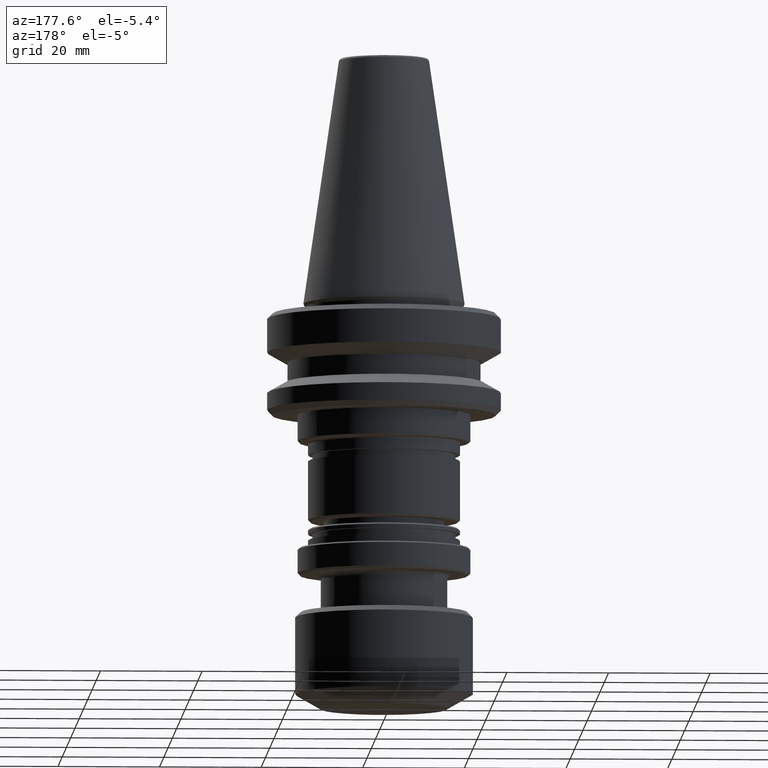
[diagram: clean part render]
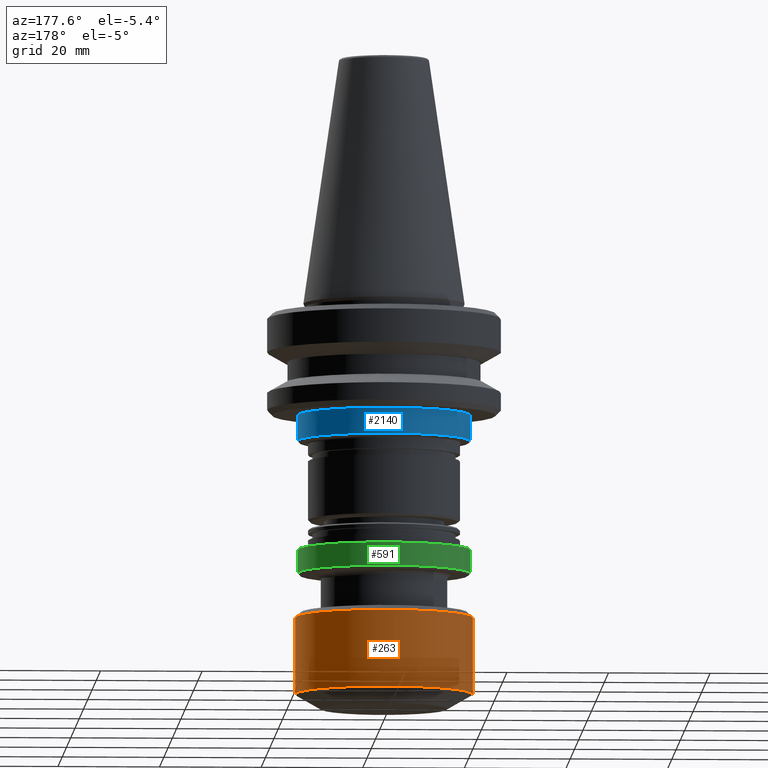
[diagram: same view with three faces highlighted in distinct colors, each labeled with its STEP entity id]
A machine part, auxiliary view with three faces highlighted in distinct colors.
Their STEP definitions:

[orange] entity #263 — the highlighted cylindrical surface (partial cylindrical patch) has radius 17.5 mm, axis along (-0, -0, 1).
#4 = DIRECTION ( 'NONE',  ( -0.0000000000000000000, -0.0000000000000000000, 1.000000000000000000 ) ) ;
#44 = FACE_OUTER_BOUND ( 'NONE', #1490, .T. ) ;
#83 = VECTOR ( 'NONE', #4, 1000.000000000000000 ) ;
#246 = DIRECTION ( 'NONE',  ( -0.0000000000000000000, -0.0000000000000000000, 1.000000000000000000 ) ) ;
#263 = ADVANCED_FACE ( 'NONE', ( #44 ), #843, .T. ) ;
#397 = LINE ( 'NONE', #778, #1742 ) ;
#407 = CIRCLE ( 'NONE', #476, 17.49999999999851500 ) ;
#476 = AXIS2_PLACEMENT_3D ( 'NONE', #1727, #2079, #575 ) ;
#495 = ORIENTED_EDGE ( 'NONE', *, *, #2002, .F. ) ;
#575 = DIRECTION ( 'NONE',  ( 1.000000000000000000, 0.0000000000000000000, 0.0000000000000000000 ) ) ;
#590 = CARTESIAN_POINT ( 'NONE',  ( -17.49999999999851500, 2.143131898507686400E-015, -77.11324865405177300 ) ) ;
#625 = EDGE_CURVE ( 'NONE', #996, #2107, #407, .T. ) ;
#639 = DIRECTION ( 'NONE',  ( 1.000000000000000000, 0.0000000000000000000, 0.0000000000000000000 ) ) ;
#722 = DIRECTION ( 'NONE',  ( -0.0000000000000000000, -0.0000000000000000000, 1.000000000000000000 ) ) ;
#726 = VERTEX_POINT ( 'NONE', #1839 ) ;
#778 = CARTESIAN_POINT ( 'NONE',  ( -17.49999999999851500, 2.143131898507686400E-015, 111.7367721053119400 ) ) ;
#803 = AXIS2_PLACEMENT_3D ( 'NONE', #1309, #246, #1519 ) ;
#843 = CYLINDRICAL_SURFACE ( 'NONE', #1035, 17.49999999999851500 ) ;
#857 = EDGE_CURVE ( 'NONE', #2107, #905, #397, .T. ) ;
#876 = EDGE_CURVE ( 'NONE', #726, #905, #2197, .T. ) ;
#903 = DIRECTION ( 'NONE',  ( -0.0000000000000000000, -0.0000000000000000000, 1.000000000000000000 ) ) ;
#905 = VERTEX_POINT ( 'NONE', #1431 ) ;
#996 = VERTEX_POINT ( 'NONE', #1254 ) ;
#1001 = LINE ( 'NONE', #1471, #83 ) ;
#1035 = AXIS2_PLACEMENT_3D ( 'NONE', #1343, #903, #639 ) ;
#1254 = CARTESIAN_POINT ( 'NONE',  ( 17.49999999999851500, 0.0000000000000000000, -77.11324865405177300 ) ) ;
#1309 = CARTESIAN_POINT ( 'NONE',  ( 0.0000000000000000000, 0.0000000000000000000, -62.00000000000005700 ) ) ;
#1343 = CARTESIAN_POINT ( 'NONE',  ( 0.0000000000000000000, 0.0000000000000000000, 111.7367721053119400 ) ) ;
#1431 = CARTESIAN_POINT ( 'NONE',  ( -17.49999999999851500, 2.143131898507686400E-015, -62.00000000000005700 ) ) ;
#1471 = CARTESIAN_POINT ( 'NONE',  ( 17.49999999999851500, 0.0000000000000000000, 111.7367721053119400 ) ) ;
#1490 = EDGE_LOOP ( 'NONE', ( #1931, #2083, #1542, #495 ) ) ;
#1519 = DIRECTION ( 'NONE',  ( 1.000000000000000000, 0.0000000000000000000, 0.0000000000000000000 ) ) ;
#1542 = ORIENTED_EDGE ( 'NONE', *, *, #876, .F. ) ;
#1727 = CARTESIAN_POINT ( 'NONE',  ( 0.0000000000000000000, 0.0000000000000000000, -77.11324865405177300 ) ) ;
#1742 = VECTOR ( 'NONE', #722, 1000.000000000000000 ) ;
#1839 = CARTESIAN_POINT ( 'NONE',  ( 17.49999999999851500, 0.0000000000000000000, -62.00000000000005700 ) ) ;
#1931 = ORIENTED_EDGE ( 'NONE', *, *, #625, .T. ) ;
#2002 = EDGE_CURVE ( 'NONE', #996, #726, #1001, .T. ) ;
#2079 = DIRECTION ( 'NONE',  ( -0.0000000000000000000, -0.0000000000000000000, 1.000000000000000000 ) ) ;
#2083 = ORIENTED_EDGE ( 'NONE', *, *, #857, .T. ) ;
#2107 = VERTEX_POINT ( 'NONE', #590 ) ;
#2197 = CIRCLE ( 'NONE', #803, 17.49999999999851500 ) ;

[blue] entity #2140 — the highlighted cylindrical surface (partial cylindrical patch) has radius 17 mm, axis along (-0, -0, 1).
#33 = ORIENTED_EDGE ( 'NONE', *, *, #1279, .T. ) ;
#93 = EDGE_CURVE ( 'NONE', #132, #1526, #318, .T. ) ;
#106 = VECTOR ( 'NONE', #1885, 1000.000000000000000 ) ;
#132 = VERTEX_POINT ( 'NONE', #944 ) ;
#222 = CYLINDRICAL_SURFACE ( 'NONE', #1310, 16.99999999999968000 ) ;
#257 = CARTESIAN_POINT ( 'NONE',  ( 0.0000000000000000000, 0.0000000000000000000, -27.09999999999923400 ) ) ;
#313 = DIRECTION ( 'NONE',  ( 1.000000000000000000, 0.0000000000000000000, 0.0000000000000000000 ) ) ;
#318 = CIRCLE ( 'NONE', #1583, 16.99999999999967700 ) ;
#498 = CARTESIAN_POINT ( 'NONE',  ( 16.99999999999968000, 0.0000000000000000000, -22.00000000000046200 ) ) ;
#546 = CARTESIAN_POINT ( 'NONE',  ( -16.99999999999968000, 2.081899558550461600E-015, -22.00000000000046200 ) ) ;
#565 = DIRECTION ( 'NONE',  ( -0.0000000000000000000, -0.0000000000000000000, 1.000000000000000000 ) ) ;
#664 = DIRECTION ( 'NONE',  ( 1.000000000000000000, 0.0000000000000000000, 0.0000000000000000000 ) ) ;
#884 = ORIENTED_EDGE ( 'NONE', *, *, #93, .T. ) ;
#896 = VECTOR ( 'NONE', #1729, 1000.000000000000000 ) ;
#944 = CARTESIAN_POINT ( 'NONE',  ( 16.99999999999967700, 0.0000000000000000000, -27.09999999999923400 ) ) ;
#957 = AXIS2_PLACEMENT_3D ( 'NONE', #1200, #1984, #313 ) ;
#977 = CARTESIAN_POINT ( 'NONE',  ( -16.99999999999968000, 2.081899558550461200E-015, 111.7367721053119400 ) ) ;
#991 = ORIENTED_EDGE ( 'NONE', *, *, #2137, .F. ) ;
#1004 = VERTEX_POINT ( 'NONE', #498 ) ;
#1023 = CARTESIAN_POINT ( 'NONE',  ( 16.99999999999968000, 0.0000000000000000000, 111.7367721053119400 ) ) ;
#1027 = LINE ( 'NONE', #1023, #106 ) ;
#1146 = CIRCLE ( 'NONE', #957, 16.99999999999968000 ) ;
#1200 = CARTESIAN_POINT ( 'NONE',  ( 0.0000000000000000000, 0.0000000000000000000, -22.00000000000046200 ) ) ;
#1279 = EDGE_CURVE ( 'NONE', #1526, #1315, #1491, .T. ) ;
#1310 = AXIS2_PLACEMENT_3D ( 'NONE', #2136, #565, #664 ) ;
#1315 = VERTEX_POINT ( 'NONE', #546 ) ;
#1491 = LINE ( 'NONE', #977, #896 ) ;
#1526 = VERTEX_POINT ( 'NONE', #1562 ) ;
#1562 = CARTESIAN_POINT ( 'NONE',  ( -16.99999999999967700, 2.081899558550460800E-015, -27.09999999999923400 ) ) ;
#1569 = DIRECTION ( 'NONE',  ( -0.0000000000000000000, -0.0000000000000000000, 1.000000000000000000 ) ) ;
#1583 = AXIS2_PLACEMENT_3D ( 'NONE', #257, #1569, #2017 ) ;
#1609 = FACE_OUTER_BOUND ( 'NONE', #1919, .T. ) ;
#1729 = DIRECTION ( 'NONE',  ( -0.0000000000000000000, -0.0000000000000000000, 1.000000000000000000 ) ) ;
#1885 = DIRECTION ( 'NONE',  ( -0.0000000000000000000, -0.0000000000000000000, 1.000000000000000000 ) ) ;
#1919 = EDGE_LOOP ( 'NONE', ( #884, #33, #991, #2163 ) ) ;
#1984 = DIRECTION ( 'NONE',  ( -0.0000000000000000000, -0.0000000000000000000, 1.000000000000000000 ) ) ;
#2017 = DIRECTION ( 'NONE',  ( 1.000000000000000000, 0.0000000000000000000, 0.0000000000000000000 ) ) ;
#2136 = CARTESIAN_POINT ( 'NONE',  ( 0.0000000000000000000, 0.0000000000000000000, 111.7367721053119400 ) ) ;
#2137 = EDGE_CURVE ( 'NONE', #1004, #1315, #1146, .T. ) ;
#2140 = ADVANCED_FACE ( 'NONE', ( #1609 ), #222, .T. ) ;
#2163 = ORIENTED_EDGE ( 'NONE', *, *, #2178, .F. ) ;
#2178 = EDGE_CURVE ( 'NONE', #132, #1004, #1027, .T. ) ;

[green] entity #591 — the highlighted cylindrical surface (partial cylindrical patch) has radius 17 mm, axis along (-0, -0, 1).
#108 = DIRECTION ( 'NONE',  ( -0.0000000000000000000, -0.0000000000000000000, 1.000000000000000000 ) ) ;
#171 = CIRCLE ( 'NONE', #227, 16.99999999999790400 ) ;
#227 = AXIS2_PLACEMENT_3D ( 'NONE', #1880, #1601, #270 ) ;
#270 = DIRECTION ( 'NONE',  ( 1.000000000000000000, 0.0000000000000000000, 0.0000000000000000000 ) ) ;
#301 = DIRECTION ( 'NONE',  ( -0.0000000000000000000, -0.0000000000000000000, 1.000000000000000000 ) ) ;
#379 = CARTESIAN_POINT ( 'NONE',  ( 16.99999999999790400, 0.0000000000000000000, 111.7367721053119400 ) ) ;
#395 = EDGE_CURVE ( 'NONE', #1240, #1882, #1678, .T. ) ;
#396 = ORIENTED_EDGE ( 'NONE', *, *, #395, .T. ) ;
#412 = CARTESIAN_POINT ( 'NONE',  ( -16.99999999999790400, 2.081899558550243900E-015, 111.7367721053119400 ) ) ;
#478 = AXIS2_PLACEMENT_3D ( 'NONE', #1173, #108, #499 ) ;
#493 = CARTESIAN_POINT ( 'NONE',  ( 0.0000000000000000000, 0.0000000000000000000, -48.59999999999864400 ) ) ;
#499 = DIRECTION ( 'NONE',  ( 1.000000000000000000, 0.0000000000000000000, 0.0000000000000000000 ) ) ;
#573 = EDGE_LOOP ( 'NONE', ( #827, #396, #657, #942 ) ) ;
#574 = VERTEX_POINT ( 'NONE', #1151 ) ;
#591 = ADVANCED_FACE ( 'NONE', ( #1861 ), #810, .T. ) ;
#635 = AXIS2_PLACEMENT_3D ( 'NONE', #493, #1809, #930 ) ;
#657 = ORIENTED_EDGE ( 'NONE', *, *, #1957, .F. ) ;
#759 = EDGE_CURVE ( 'NONE', #574, #1240, #171, .T. ) ;
#810 = CYLINDRICAL_SURFACE ( 'NONE', #478, 16.99999999999790400 ) ;
#827 = ORIENTED_EDGE ( 'NONE', *, *, #759, .T. ) ;
#829 = CARTESIAN_POINT ( 'NONE',  ( -16.99999999999790400, 2.081899558550243900E-015, -48.59999999999864400 ) ) ;
#930 = DIRECTION ( 'NONE',  ( 1.000000000000000000, 0.0000000000000000000, 0.0000000000000000000 ) ) ;
#942 = ORIENTED_EDGE ( 'NONE', *, *, #1832, .F. ) ;
#1066 = VECTOR ( 'NONE', #301, 1000.000000000000000 ) ;
#1151 = CARTESIAN_POINT ( 'NONE',  ( 16.99999999999790400, 0.0000000000000000000, -53.19999999999991800 ) ) ;
#1173 = CARTESIAN_POINT ( 'NONE',  ( 0.0000000000000000000, 0.0000000000000000000, 111.7367721053119400 ) ) ;
#1219 = VECTOR ( 'NONE', #2254, 1000.000000000000000 ) ;
#1240 = VERTEX_POINT ( 'NONE', #2111 ) ;
#1447 = VERTEX_POINT ( 'NONE', #1737 ) ;
#1601 = DIRECTION ( 'NONE',  ( -0.0000000000000000000, -0.0000000000000000000, 1.000000000000000000 ) ) ;
#1678 = LINE ( 'NONE', #412, #1219 ) ;
#1737 = CARTESIAN_POINT ( 'NONE',  ( 16.99999999999790400, 0.0000000000000000000, -48.59999999999864400 ) ) ;
#1809 = DIRECTION ( 'NONE',  ( -0.0000000000000000000, -0.0000000000000000000, 1.000000000000000000 ) ) ;
#1832 = EDGE_CURVE ( 'NONE', #574, #1447, #1994, .T. ) ;
#1861 = FACE_OUTER_BOUND ( 'NONE', #573, .T. ) ;
#1880 = CARTESIAN_POINT ( 'NONE',  ( 0.0000000000000000000, 0.0000000000000000000, -53.19999999999991800 ) ) ;
#1882 = VERTEX_POINT ( 'NONE', #829 ) ;
#1957 = EDGE_CURVE ( 'NONE', #1447, #1882, #2040, .T. ) ;
#1994 = LINE ( 'NONE', #379, #1066 ) ;
#2040 = CIRCLE ( 'NONE', #635, 16.99999999999790400 ) ;
#2111 = CARTESIAN_POINT ( 'NONE',  ( -16.99999999999790400, 2.081899558550243900E-015, -53.19999999999991800 ) ) ;
#2254 = DIRECTION ( 'NONE',  ( -0.0000000000000000000, -0.0000000000000000000, 1.000000000000000000 ) ) ;